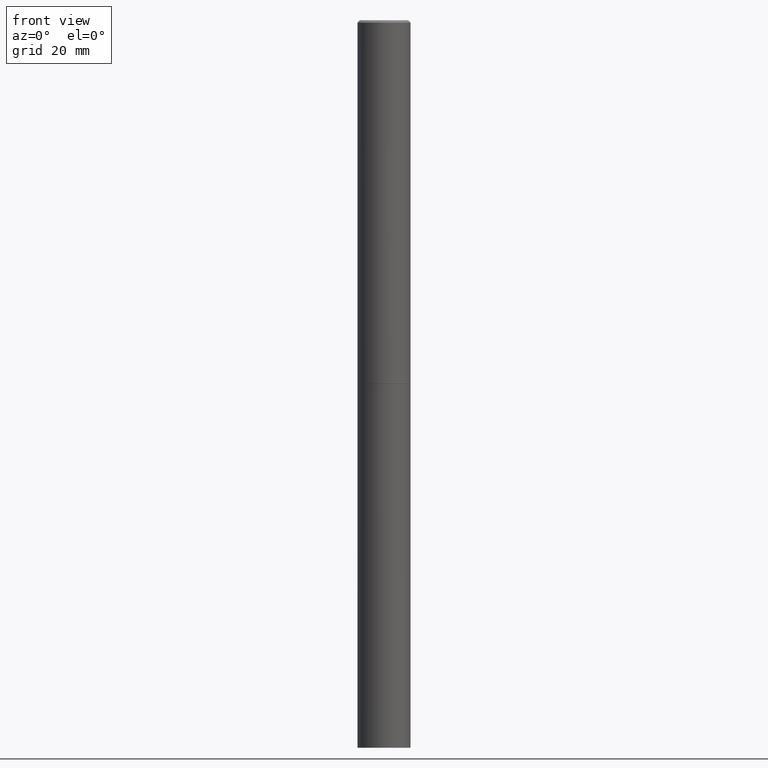
[diagram: clean part render]
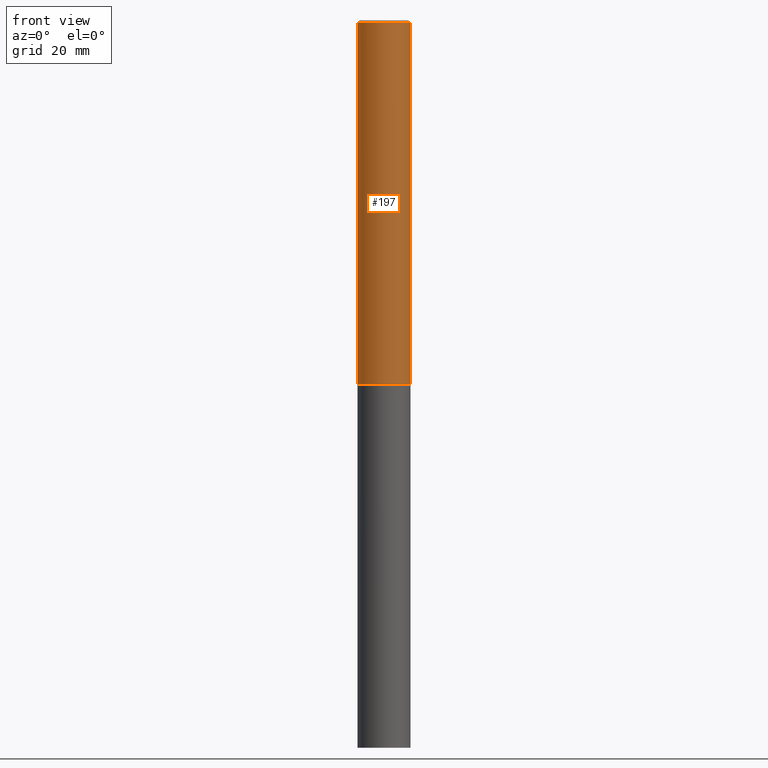
[diagram: same view with one face highlighted and labeled with its STEP entity id]
A machine part, front view. The second image highlights one B-rep face of the part: STEP entity #197.
In plain terms, the highlighted cylindrical surface (edge-blend (fillet) strip) has radius 5.5562 mm, axis along (-0, 0, 1).
Its self-contained STEP definition (entity closure, byte-faithful):
#11 = CIRCLE ( 'NONE', #107, 0.2187499999999996114 ) ;
#18 = VERTEX_POINT ( 'NONE', #267 ) ;
#54 = VERTEX_POINT ( 'NONE', #349 ) ;
#61 = CARTESIAN_POINT ( 'NONE',  ( 0.2187500000000000000, -1.199847562093446498E-14, -2.999000000000000554 ) ) ;
#64 = DIRECTION ( 'NONE',  ( 1.000000000000000000, -6.982962677686266711E-15, 4.876176775795936353E-29 ) ) ;
#75 = DIRECTION ( 'NONE',  ( 1.000000000000000000, -6.982962677686266711E-15, 0.000000000000000000 ) ) ;
#79 = LINE ( 'NONE', #188, #84 ) ;
#84 = VECTOR ( 'NONE', #251, 39.37007874015748143 ) ;
#88 = EDGE_CURVE ( 'NONE', #18, #54, #191, .T. ) ;
#89 = CARTESIAN_POINT ( 'NONE',  ( 7.333960949749226429E-29, -1.047095253519059492E-14, -2.999000000000000554 ) ) ;
#107 = AXIS2_PLACEMENT_3D ( 'NONE', #161, #220, #75 ) ;
#121 = CARTESIAN_POINT ( 'NONE',  ( -0.2187499999999998057, 1.554312234475217776E-15, -1.076017050993259781E-29 ) ) ;
#151 = ORIENTED_EDGE ( 'NONE', *, *, #295, .T. ) ;
#161 = CARTESIAN_POINT ( 'NONE',  ( 4.890937612370280165E-31, -6.982962677686301470E-17, -0.02000000000000003164 ) ) ;
#165 = EDGE_CURVE ( 'NONE', #18, #199, #203, .T. ) ;
#168 = DIRECTION ( 'NONE',  ( 1.000000000000000000, -6.982962677686262766E-15, 0.000000000000000000 ) ) ;
#188 = CARTESIAN_POINT ( 'NONE',  ( 0.2187499999999998057, -1.527523085743869462E-15, 1.066663669705360184E-29 ) ) ;
#191 = LINE ( 'NONE', #121, #236 ) ;
#197 = ADVANCED_FACE ( 'NONE', ( #200 ), #310, .T. ) ;
#199 = VERTEX_POINT ( 'NONE', #61 ) ;
#200 = FACE_OUTER_BOUND ( 'NONE', #279, .T. ) ;
#201 = DIRECTION ( 'NONE',  ( -2.445468806185136597E-29, 3.491481338843145583E-15, 1.000000000000000000 ) ) ;
#203 = CIRCLE ( 'NONE', #329, 0.2187500000000000000 ) ;
#212 = ORIENTED_EDGE ( 'NONE', *, *, #165, .T. ) ;
#219 = DIRECTION ( 'NONE',  ( -2.445468806185136877E-29, 3.491481338843145188E-15, 1.000000000000000000 ) ) ;
#220 = DIRECTION ( 'NONE',  ( -2.445468806185136597E-29, 3.491481338843145583E-15, 1.000000000000000000 ) ) ;
#235 = CARTESIAN_POINT ( 'NONE',  ( 0.000000000000000000, 0.000000000000000000, 0.000000000000000000 ) ) ;
#236 = VECTOR ( 'NONE', #219, 39.37007874015748143 ) ;
#242 = ORIENTED_EDGE ( 'NONE', *, *, #88, .F. ) ;
#249 = CARTESIAN_POINT ( 'NONE',  ( 0.2187499999999996114, -1.570563563789383066E-15, -0.02000000000000003164 ) ) ;
#251 = DIRECTION ( 'NONE',  ( -2.445468806185136877E-29, 3.491481338843145188E-15, 1.000000000000000000 ) ) ;
#267 = CARTESIAN_POINT ( 'NONE',  ( -0.2187500000000000278, -3.716078846508506010E-15, -2.999000000000000554 ) ) ;
#279 = EDGE_LOOP ( 'NONE', ( #242, #212, #151, #328 ) ) ;
#295 = EDGE_CURVE ( 'NONE', #199, #314, #79, .T. ) ;
#306 = EDGE_CURVE ( 'NONE', #54, #314, #11, .T. ) ;
#310 = CYLINDRICAL_SURFACE ( 'NONE', #316, 0.2187499999999998057 ) ;
#314 = VERTEX_POINT ( 'NONE', #249 ) ;
#316 = AXIS2_PLACEMENT_3D ( 'NONE', #235, #334, #64 ) ;
#328 = ORIENTED_EDGE ( 'NONE', *, *, #306, .F. ) ;
#329 = AXIS2_PLACEMENT_3D ( 'NONE', #89, #201, #168 ) ;
#334 = DIRECTION ( 'NONE',  ( -2.445468806185136597E-29, 3.491481338843145583E-15, 1.000000000000000000 ) ) ;
#349 = CARTESIAN_POINT ( 'NONE',  ( -0.2187499999999996114, 1.457693458967004981E-15, -0.02000000000000003164 ) ) ;